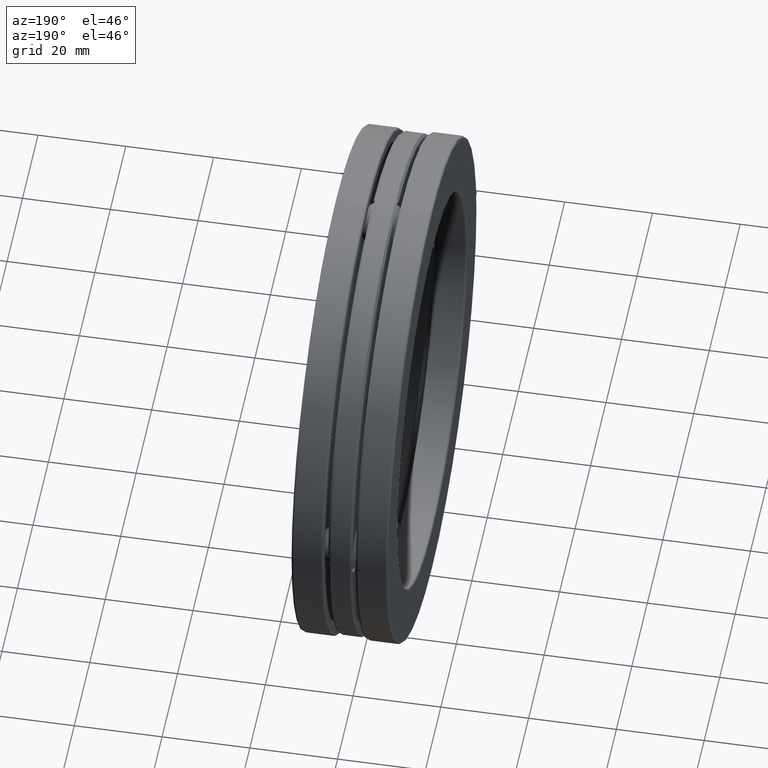
[diagram: clean part render]
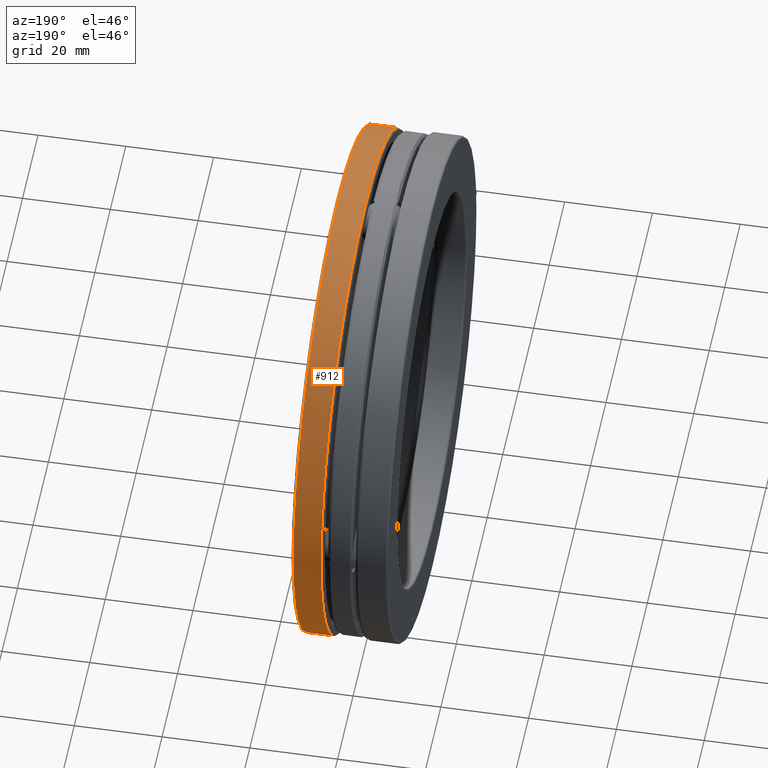
[diagram: same view with one face highlighted and labeled with its STEP entity id]
A machine part, auxiliary view. The second image highlights one B-rep face of the part: STEP entity #912.
In plain terms, the highlighted cylindrical surface (bore or boss wall) has radius 57.5056 mm, axis along (-1, -0, -0).
Its self-contained STEP definition (entity closure, byte-faithful):
#58 = DIRECTION ( 'NONE',  ( -1.000000000000000000, -0.0000000000000000000, -0.0000000000000000000 ) ) ;
#104 = CARTESIAN_POINT ( 'NONE',  ( 0.1643362200000008100, 0.0000000000000000000, 0.0000000000000000000 ) ) ;
#114 = VERTEX_POINT ( 'NONE', #824 ) ;
#120 = ORIENTED_EDGE ( 'NONE', *, *, #164, .T. ) ;
#128 = EDGE_LOOP ( 'NONE', ( #867 ) ) ;
#164 = EDGE_CURVE ( 'NONE', #114, #114, #1024, .T. ) ;
#198 = DIRECTION ( 'NONE',  ( 0.0000000000000000000, 0.0000000000000000000, 1.000000000000000000 ) ) ;
#224 = CYLINDRICAL_SURFACE ( 'NONE', #668, 2.264000000000000200 ) ;
#268 = CARTESIAN_POINT ( 'NONE',  ( 0.0000000000000000000, 0.0000000000000000000, 0.0000000000000000000 ) ) ;
#309 = DIRECTION ( 'NONE',  ( -1.000000000000000000, -0.0000000000000000000, -0.0000000000000000000 ) ) ;
#317 = EDGE_LOOP ( 'NONE', ( #120 ) ) ;
#318 = FACE_OUTER_BOUND ( 'NONE', #128, .T. ) ;
#494 = CIRCLE ( 'NONE', #1193, 2.264000000000000200 ) ;
#667 = CARTESIAN_POINT ( 'NONE',  ( 0.4130000000000010300, 0.0000000000000000000, 0.0000000000000000000 ) ) ;
#668 = AXIS2_PLACEMENT_3D ( 'NONE', #268, #952, #746 ) ;
#691 = EDGE_CURVE ( 'NONE', #882, #882, #494, .T. ) ;
#746 = DIRECTION ( 'NONE',  ( 0.0000000000000000000, 0.0000000000000000000, 1.000000000000000000 ) ) ;
#824 = CARTESIAN_POINT ( 'NONE',  ( 0.4130000000000010300, 0.0000000000000000000, 2.264000000000000200 ) ) ;
#860 = DIRECTION ( 'NONE',  ( 0.0000000000000000000, 0.0000000000000000000, 1.000000000000000000 ) ) ;
#867 = ORIENTED_EDGE ( 'NONE', *, *, #691, .F. ) ;
#882 = VERTEX_POINT ( 'NONE', #1148 ) ;
#912 = ADVANCED_FACE ( 'NONE', ( #318, #953 ), #224, .T. ) ;
#952 = DIRECTION ( 'NONE',  ( -1.000000000000000000, -0.0000000000000000000, -0.0000000000000000000 ) ) ;
#953 = FACE_OUTER_BOUND ( 'NONE', #317, .T. ) ;
#1024 = CIRCLE ( 'NONE', #1094, 2.264000000000000200 ) ;
#1094 = AXIS2_PLACEMENT_3D ( 'NONE', #667, #58, #860 ) ;
#1148 = CARTESIAN_POINT ( 'NONE',  ( 0.1643362200000008100, 0.0000000000000000000, 2.264000000000000200 ) ) ;
#1193 = AXIS2_PLACEMENT_3D ( 'NONE', #104, #309, #198 ) ;